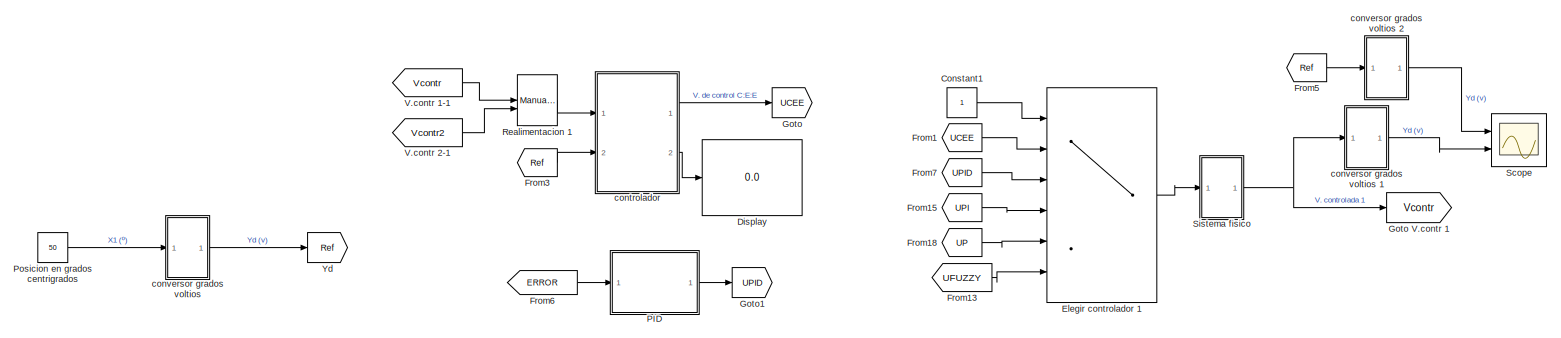
[diagram: root canvas - part 1/3, full width, top band]
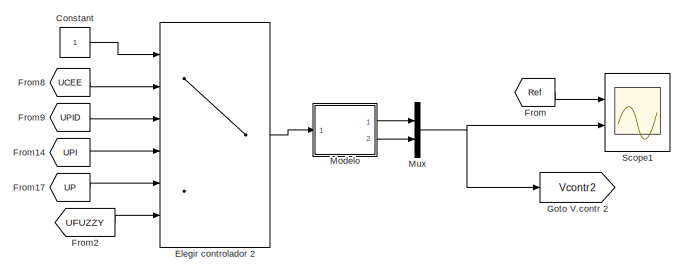
[diagram: root canvas - part 2/3, bottom right region]
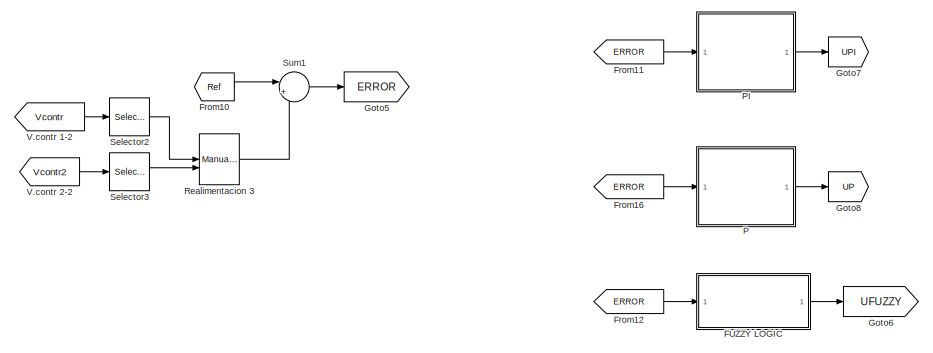
[diagram: root canvas - part 3/3, bottom left region]
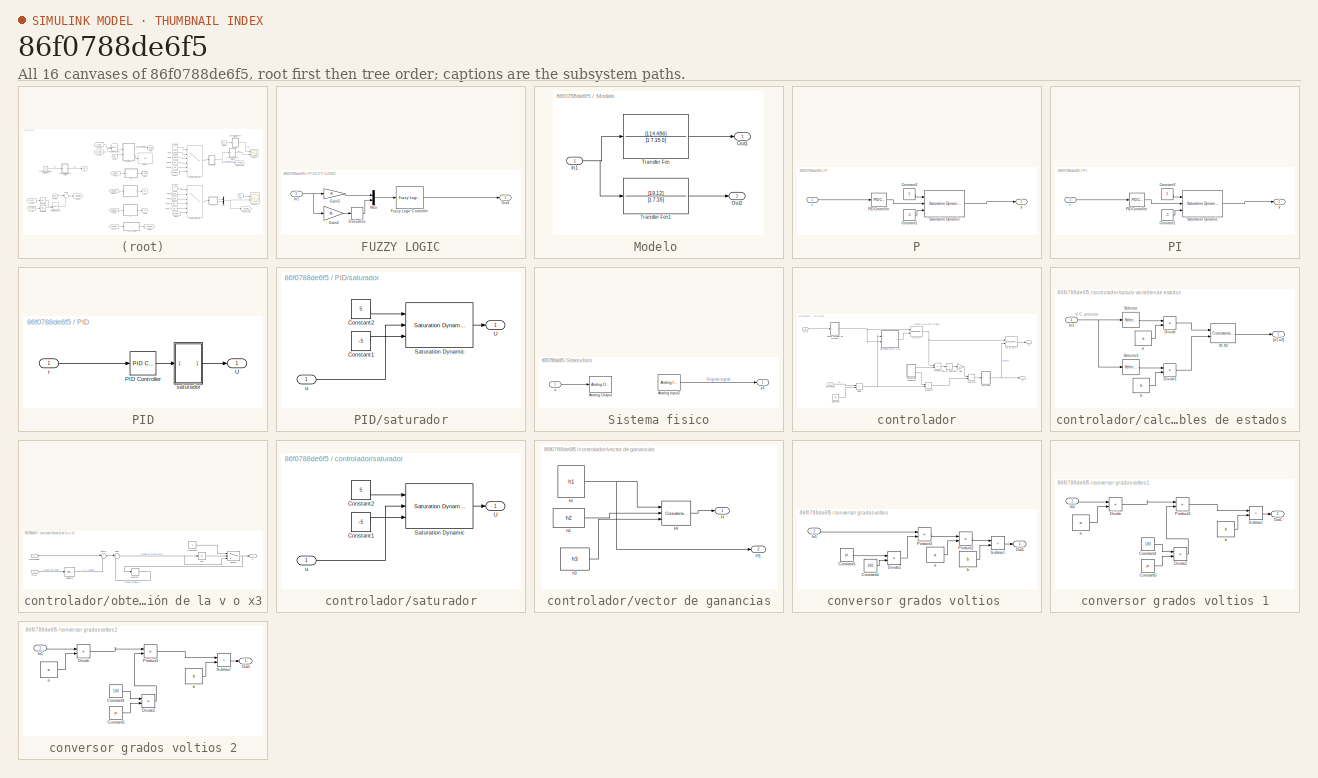
[diagram: thumbnail index - all 16 canvases of the model, root first then tree order]
MODEL slx_86f0788de6f5
KIND model
CONFIG AbsTol = auto
CONFIG EnableMultiTasking = off
CONFIG FixedStep = auto
CONFIG MaxStep = auto
CONFIG MinStep = auto
CONFIG RelTol = 1e-3
CONFIG SampleTimeConstraint = Unconstrained
CONFIG SolverName = ode5
CONFIG StartTime = 0.0
CONFIG StopTime = inf
BLOCK [Constant] Constant
BLOCK [Constant] Constant1
BLOCK [Display] Display
  Decimation = 1
  Ports = [1]
BLOCK [MultiPortSwitch] Elegir controlador 1
  InputSameDT = off
  Inputs = 5
  Ports = [6, 1]
  SaturateOnIntegerOverflow = off
BLOCK [MultiPortSwitch] Elegir controlador 2
  InputSameDT = off
  Inputs = 5
  Ports = [6, 1]
  SaturateOnIntegerOverflow = off
BLOCK [SubSystem] FUZZY LOGIC
  Ports = [1, 1]
  RequestExecContextInheritance = off
BLOCK [Derivative] FUZZY LOGIC/Derivative
BLOCK [Reference] FUZZY LOGIC/Fuzzy Logic Controller  REF=fuzblock/Fuzzy Logic   (lib defined in mdl_858b3b3e7478)
Controller
  Ports = [1, 1]
  SourceBlock = fuzblock/Fuzzy Logic \nController
  SourceProductBaseCode = FL
  SourceType = Fuzzy Inference System
BLOCK [Gain] FUZZY LOGIC/Gain2
BLOCK [Gain] FUZZY LOGIC/Gain3
BLOCK [Inport] FUZZY LOGIC/In1
BLOCK [Mux] FUZZY LOGIC/Mux
  DisplayOption = bar
  Inputs = 2
  Ports = [2, 1]
BLOCK [Outport] FUZZY LOGIC/Out1
BLOCK [From] From
  GotoTag = Ref
BLOCK [From] From1
  GotoTag = UCEE
BLOCK [From] From10
  GotoTag = Ref
BLOCK [From] From11
  GotoTag = ERROR
BLOCK [From] From12
  GotoTag = ERROR
BLOCK [From] From13
  GotoTag = UFUZZY
BLOCK [From] From14
  GotoTag = UPI
BLOCK [From] From15
  GotoTag = UPI
BLOCK [From] From16
  GotoTag = ERROR
BLOCK [From] From17
  GotoTag = UP
BLOCK [From] From18
  GotoTag = UP
BLOCK [From] From2
  GotoTag = UFUZZY
BLOCK [From] From3
  GotoTag = Ref
BLOCK [From] From5
  GotoTag = Ref
BLOCK [From] From6
  GotoTag = ERROR
BLOCK [From] From7
  GotoTag = UPID
BLOCK [From] From8
  GotoTag = UCEE
BLOCK [From] From9
  GotoTag = UPID
BLOCK [Goto] Goto
  GotoTag = UCEE
BLOCK [Goto] Goto V.contr 1
  GotoTag = Vcontr
BLOCK [Goto] Goto V.contr 2
  GotoTag = Vcontr2
BLOCK [Goto] Goto1
  GotoTag = UPID
BLOCK [Goto] Goto5
  GotoTag = ERROR
BLOCK [Goto] Goto6
  GotoTag = UFUZZY
BLOCK [Goto] Goto7
  GotoTag = UPI
BLOCK [Goto] Goto8
  GotoTag = UP
BLOCK [SubSystem] Modelo 
  Ports = [1, 2]
  RequestExecContextInheritance = off
BLOCK [Inport] Modelo /In1
BLOCK [Outport] Modelo /Out1
BLOCK [Outport] Modelo /Out2
  Port = 2
BLOCK [TransferFcn] Modelo /Transfer Fcn
  Denominator = [1 7.35 0]
  Numerator = [114.486]
BLOCK [TransferFcn] Modelo /Transfer Fcn1
  Denominator = [1 7.35]
  Numerator = [19.12]
BLOCK [Mux] Mux
  DisplayOption = bar
  Inputs = 2
  Ports = [2, 1]
BLOCK [SubSystem] P
  Ports = [1, 1]
  RequestExecContextInheritance = off
BLOCK [Constant] P/Constant1
  Value = -5
BLOCK [Constant] P/Constant2
  Value = 5
BLOCK [Reference] P/PID Controller  REF=pid_lib/PID Controller
  Ports = [1, 1]
  SourceBlock = pid_lib/PID Controller
  SourceProductBaseCode = SL
  SourceType = PID 1dof
BLOCK [Reference] P/Saturation Dynamic  REF=simulink/Discontinuities/Saturation
Dynamic
  Ports = [3, 1]
  SourceBlock = simulink/Discontinuities/Saturation\nDynamic
  SourceProductBaseCode = SL
  SourceType = Saturation Dynamic
BLOCK [Inport] P/r
BLOCK [Outport] P/y
BLOCK [SubSystem] PI
  Ports = [1, 1]
  RequestExecContextInheritance = off
BLOCK [Constant] PI/Constant1
  Value = -5
BLOCK [Constant] PI/Constant2
  Value = 5
BLOCK [Reference] PI/PID Controller  REF=pid_lib/PID Controller
  Ports = [1, 1]
  SourceBlock = pid_lib/PID Controller
  SourceProductBaseCode = SL
  SourceType = PID 1dof
BLOCK [Reference] PI/Saturation Dynamic  REF=simulink/Discontinuities/Saturation
Dynamic
  Ports = [3, 1]
  SourceBlock = simulink/Discontinuities/Saturation\nDynamic
  SourceProductBaseCode = SL
  SourceType = Saturation Dynamic
BLOCK [Inport] PI/r
BLOCK [Outport] PI/y
BLOCK [SubSystem] PID
  Ports = [1, 1]
  RequestExecContextInheritance = off
BLOCK [Reference] PID/PID Controller  REF=pid_lib/PID Controller
  Ports = [1, 1]
  SourceBlock = pid_lib/PID Controller
  SourceProductBaseCode = SL
  SourceType = PID 1dof
BLOCK [Outport] PID/U
BLOCK [Inport] PID/r
BLOCK [SubSystem] PID/saturador
  Ports = [1, 1]
  RequestExecContextInheritance = off
BLOCK [Constant] PID/saturador/Constant1
  Value = -5
BLOCK [Constant] PID/saturador/Constant2
  Value = 5
BLOCK [Reference] PID/saturador/Saturation Dynamic  REF=simulink/Discontinuities/Saturation
Dynamic
  Ports = [3, 1]
  SourceBlock = simulink/Discontinuities/Saturation\nDynamic
  SourceProductBaseCode = SL
  SourceType = Saturation Dynamic
BLOCK [Outport] PID/saturador/U
  OutDataTypeStr = double
BLOCK [Inport] PID/saturador/u
  OutDataTypeStr = double
BLOCK [Constant] Posicion en grados centrigrados
  Value = 50
BLOCK [ManualSwitch] Realimentacion 1
BLOCK [ManualSwitch] Realimentacion 3
BLOCK [Scope] Scope
  Floating = off
  NumInputPorts = 2
  Ports = [2]
  ScopeSpecificationString = Simulink.scopes.TimeScopeBlockCfg('CurrentConfiguration', extmgr.ConfigurationSet(extmgr.Configuration('Core','General UI',true),extmgr.Configuration('Core','Source UI',true),extmgr.Configuration('Sources','WiredSimulink',true),extmgr.Configuration('Visuals','Time Domain',true,'SerializedDisplays',{struct('MinYLimReal','-120','MaxYLimReal','120','YLabelReal','','MinYLimMag','0.13306','MaxYLimMag',...<+1543ch>
BLOCK [Scope] Scope1
  Floating = off
  NumInputPorts = 2
  Ports = [2]
  ScopeSpecificationString = Simulink.scopes.TimeScopeBlockCfg('CurrentConfiguration', extmgr.ConfigurationSet(extmgr.Configuration('Core','General UI',true),extmgr.Configuration('Core','Source UI',true),extmgr.Configuration('Sources','WiredSimulink',true,'DataLoggingVariableName','ScopeData1'),extmgr.Configuration('Visuals','Time Domain',true,'SerializedDisplays',{struct('MinYLimReal','-12.5378','MaxYLimReal','61.42277','YLa...<+1424ch>
BLOCK [Selector] Selector2
  IndexOptions = Index vector (dialog)
  Indices = [1]
  InputPortWidth = 2
  OutputSizes = 1
  Ports = [1, 1]
BLOCK [Selector] Selector3
  IndexOptions = Index vector (dialog)
  Indices = [1]
  InputPortWidth = 2
  OutputSizes = 1
  Ports = [1, 1]
BLOCK [SubSystem] Sistema fisico
  Ports = [1, 1]
  RequestExecContextInheritance = off
BLOCK [Reference] Sistema fisico/Analog Input2  REF=sldrtlib/Analog Input
  AttributesFormatString = National Instruments\nPCI-6014 [auto]
  Ports = [0, 1]
  SourceBlock = sldrtlib/Analog Input
  SourceProductBaseCode = WT
  SourceType = Simulink Desktop Real-Time Analog Input
BLOCK [Reference] Sistema fisico/Analog Output  REF=sldrtlib/Analog Output
  AttributesFormatString = National Instruments\nPCI-6014 [auto]
  Ports = [1]
  SourceBlock = sldrtlib/Analog Output
  SourceProductBaseCode = WT
  SourceType = Simulink Desktop Real-Time Analog Output
BLOCK [Inport] Sistema fisico/u
BLOCK [Outport] Sistema fisico/y1
BLOCK [Sum] Sum1
  Inputs = |+-
  Ports = [2, 1]
BLOCK [From] V.contr 1-1
  GotoTag = Vcontr
BLOCK [From] V.contr 1-2
  GotoTag = Vcontr
BLOCK [From] V.contr 2-1
  GotoTag = Vcontr2
BLOCK [From] V.contr 2-2
  GotoTag = Vcontr2
BLOCK [Goto] Yd
  GotoTag = Ref
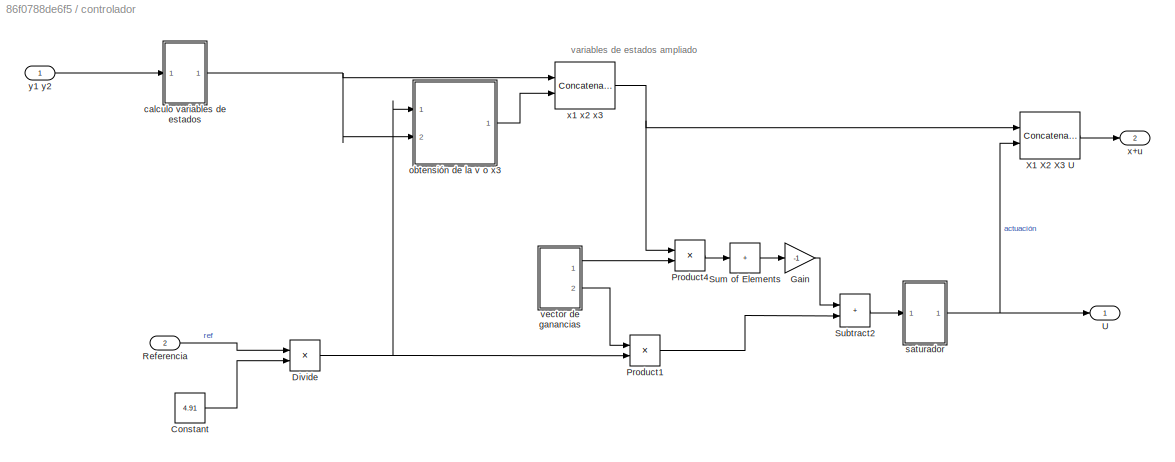
BLOCK [SubSystem] controlador
  Ports = [2, 2]
  RequestExecContextInheritance = off
BLOCK [Constant] controlador/Constant
  Value = 4.91
BLOCK [Product] controlador/Divide
  Inputs = */
  Ports = [2, 1]
BLOCK [Gain] controlador/Gain
  Gain = -1
BLOCK [Product] controlador/Product1
  Ports = [2, 1]
BLOCK [Product] controlador/Product4
  Ports = [2, 1]
BLOCK [Inport] controlador/Referencia
  Port = 2
BLOCK [Sum] controlador/Subtract2
  IconShape = rectangular
  OutDataTypeStr = double
  Ports = [2, 1]
BLOCK [Sum] controlador/Sum of Elements
  IconShape = rectangular
  Inputs = +
  Ports = [1, 1]
BLOCK [Outport] controlador/U
  OutDataTypeStr = double
BLOCK [Concatenate] controlador/X1 X2 X3 U
  ConcatenateDimension = 2
  Ports = [2, 1]
BLOCK [SubSystem] controlador/calculo variables de estados 
  Ports = [1, 1]
  RequestExecContextInheritance = off
BLOCK [Product] controlador/calculo variables de estados /Divide
  Inputs = */
  Ports = [2, 1]
BLOCK [Product] controlador/calculo variables de estados /Divide1
  Inputs = */
  Ports = [2, 1]
BLOCK [Inport] controlador/calculo variables de estados /In1
BLOCK [Selector] controlador/calculo variables de estados /Selector
  IndexOptions = Index vector (dialog)
  Indices = [1]
  InputPortWidth = 2
  OutputSizes = 1
  Ports = [1, 1]
BLOCK [Selector] controlador/calculo variables de estados /Selector1
  IndexOptions = Index vector (dialog)
  Indices = [2]
  InputPortWidth = 2
  OutputSizes = 1
  Ports = [1, 1]
BLOCK [Concatenate] controlador/calculo variables de estados /X1 X2 
  ConcatenateDimension = 2
  Ports = [2, 1]
BLOCK [Outport] controlador/calculo variables de estados /[x1 x2]
BLOCK [Constant] controlador/calculo variables de estados /a
  Value = a
BLOCK [Constant] controlador/calculo variables de estados /b
  Value = b
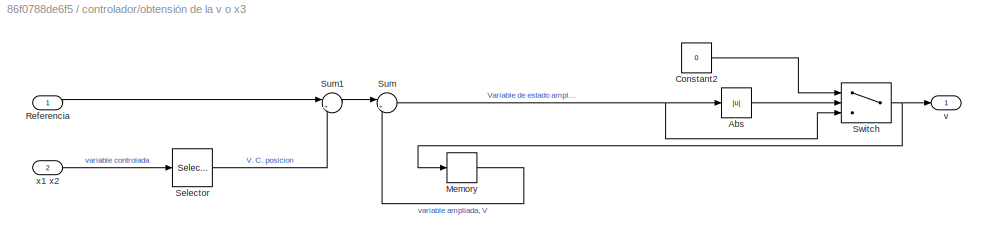
BLOCK [SubSystem] controlador/obtensión de la v o x3
  Ports = [2, 1]
  RequestExecContextInheritance = off
BLOCK [Abs] controlador/obtensión de la v o x3/Abs
  SaturateOnIntegerOverflow = off
BLOCK [Constant] controlador/obtensión de la v o x3/Constant2
  Value = 0
BLOCK [Memory] controlador/obtensión de la v o x3/Memory
  InheritSampleTime = on
  LinearizeAsDelay = on
BLOCK [Inport] controlador/obtensión de la v o x3/Referencia
BLOCK [Selector] controlador/obtensión de la v o x3/Selector
  IndexOptions = Index vector (dialog)
  Indices = [1]
  InputPortWidth = 2
  OutputSizes = 1
  Ports = [1, 1]
BLOCK [Sum] controlador/obtensión de la v o x3/Sum
  Inputs = |++
  Ports = [2, 1]
BLOCK [Sum] controlador/obtensión de la v o x3/Sum1
  Inputs = |+-
  Ports = [2, 1]
BLOCK [Switch] controlador/obtensión de la v o x3/Switch
  InputSameDT = off
  SaturateOnIntegerOverflow = off
  Threshold = 2040
BLOCK [Outport] controlador/obtensión de la v o x3/v
BLOCK [Inport] controlador/obtensión de la v o x3/x1 x2
  Port = 2
  PortDimensions = 2
BLOCK [SubSystem] controlador/saturador
  Ports = [1, 1]
  RequestExecContextInheritance = off
BLOCK [Constant] controlador/saturador/Constant1
  Value = -5
BLOCK [Constant] controlador/saturador/Constant2
  Value = 5
BLOCK [Reference] controlador/saturador/Saturation Dynamic  REF=simulink/Discontinuities/Saturation
Dynamic
  Ports = [3, 1]
  SourceBlock = simulink/Discontinuities/Saturation\nDynamic
  SourceProductBaseCode = SL
  SourceType = Saturation Dynamic
BLOCK [Outport] controlador/saturador/U
  OutDataTypeStr = double
BLOCK [Inport] controlador/saturador/u
  OutDataTypeStr = double
BLOCK [SubSystem] controlador/vector de ganancias
  Ports = [0, 2]
  RequestExecContextInheritance = off
BLOCK [Outport] controlador/vector de ganancias/H
BLOCK [Outport] controlador/vector de ganancias/H1
  Port = 2
BLOCK [Concatenate] controlador/vector de ganancias/Ht
  ConcatenateDimension = 2
  NumInputs = 3
  Ports = [3, 1]
BLOCK [Constant] controlador/vector de ganancias/h1
  Value = h1
BLOCK [Constant] controlador/vector de ganancias/h2
  Value = h2
BLOCK [Constant] controlador/vector de ganancias/h3
  Value = h3
BLOCK [Outport] controlador/x+u
  Port = 2
BLOCK [Concatenate] controlador/x1 x2 x3
  ConcatenateDimension = 2
  Ports = [2, 1]
BLOCK [Inport] controlador/y1 y2
  OutDataTypeStr = double
BLOCK [SubSystem] conversor grados voltios 
  Ports = [1, 1]
  RequestExecContextInheritance = off
BLOCK [Constant] conversor grados voltios /Constant4
  Value = 180
BLOCK [Constant] conversor grados voltios /Constant5
  Value = pi
BLOCK [Product] conversor grados voltios /Divide5
  Inputs = */
  Ports = [2, 1]
BLOCK [Inport] conversor grados voltios /In1
BLOCK [Outport] conversor grados voltios /Out1
BLOCK [Product] conversor grados voltios /Product2
  Ports = [2, 1]
BLOCK [Product] conversor grados voltios /Product3
  Ports = [2, 1]
BLOCK [Sum] conversor grados voltios /Subtract
  IconShape = rectangular
  Ports = [2, 1]
BLOCK [Constant] conversor grados voltios /a
  Value = a
BLOCK [Constant] conversor grados voltios /b
  Value = b
BLOCK [SubSystem] conversor grados voltios 1
  Ports = [1, 1]
  RequestExecContextInheritance = off
BLOCK [Constant] conversor grados voltios 1/Constant4
  Value = 180
BLOCK [Constant] conversor grados voltios 1/Constant5
  Value = pi
BLOCK [Product] conversor grados voltios 1/Divide
  Inputs = */
  Ports = [2, 1]
BLOCK [Product] conversor grados voltios 1/Divide5
  Inputs = */
  Ports = [2, 1]
BLOCK [Inport] conversor grados voltios 1/In1
BLOCK [Outport] conversor grados voltios 1/Out1
BLOCK [Product] conversor grados voltios 1/Product3
  Ports = [2, 1]
BLOCK [Sum] conversor grados voltios 1/Subtract
  IconShape = rectangular
  Ports = [2, 1]
BLOCK [Constant] conversor grados voltios 1/a
  Value = a
BLOCK [Constant] conversor grados voltios 1/b
  Value = b
BLOCK [SubSystem] conversor grados voltios 2
  Ports = [1, 1]
  RequestExecContextInheritance = off
BLOCK [Constant] conversor grados voltios 2/Constant4
  Value = 180
BLOCK [Constant] conversor grados voltios 2/Constant5
  Value = pi
BLOCK [Product] conversor grados voltios 2/Divide
  Inputs = */
  Ports = [2, 1]
BLOCK [Product] conversor grados voltios 2/Divide5
  Inputs = */
  Ports = [2, 1]
BLOCK [Inport] conversor grados voltios 2/In1
BLOCK [Outport] conversor grados voltios 2/Out1
BLOCK [Product] conversor grados voltios 2/Product3
  Ports = [2, 1]
BLOCK [Sum] conversor grados voltios 2/Subtract
  IconShape = rectangular
  Ports = [2, 1]
BLOCK [Constant] conversor grados voltios 2/a
  Value = a
BLOCK [Constant] conversor grados voltios 2/b
  Value = b
ANNOTATION controlador: variables de estados ampliado
ANNOTATION controlador/calculo variables de estados : V. C. posicion
LINE Constant1:1 -> Elegir controlador 1:1
LINE Constant:1 -> Elegir controlador 2:1
LINE Elegir controlador 1:1 -> Sistema fisico:1
LINE Elegir controlador 2:1 -> Modelo :1
LINE FUZZY LOGIC/Derivative:1 -> FUZZY LOGIC/Mux:2
LINE FUZZY LOGIC/Fuzzy Logic Controller:1 -> FUZZY LOGIC/Out1:1
LINE FUZZY LOGIC/Gain2:1 -> FUZZY LOGIC/Derivative:1
LINE FUZZY LOGIC/Gain3:1 -> FUZZY LOGIC/Mux:1
NET FUZZY LOGIC/In1:1 -> FUZZY LOGIC/Gain2:1, FUZZY LOGIC/Gain3:1
LINE FUZZY LOGIC/Mux:1 -> FUZZY LOGIC/Fuzzy Logic Controller:1
LINE FUZZY LOGIC:1 -> Goto6:1
LINE From10:1 -> Sum1:1
LINE From11:1 -> PI:1
LINE From12:1 -> FUZZY LOGIC:1
LINE From13:1 -> Elegir controlador 1:6
LINE From14:1 -> Elegir controlador 2:4
LINE From15:1 -> Elegir controlador 1:4
LINE From16:1 -> P:1
LINE From17:1 -> Elegir controlador 2:5
LINE From18:1 -> Elegir controlador 1:5
LINE From1:1 -> Elegir controlador 1:2
LINE From2:1 -> Elegir controlador 2:6
LINE From3:1 -> controlador:2
LINE From5:1 -> conversor grados voltios 2:1
LINE From6:1 -> PID:1
LINE From7:1 -> Elegir controlador 1:3
LINE From8:1 -> Elegir controlador 2:2
LINE From9:1 -> Elegir controlador 2:3
LINE From:1 -> Scope1:1
NET Modelo /In1:1 -> Modelo /Transfer Fcn1:1, Modelo /Transfer Fcn:1
LINE Modelo /Transfer Fcn1:1 -> Modelo /Out2:1
LINE Modelo /Transfer Fcn:1 -> Modelo /Out1:1
LINE Modelo :1 -> Mux:1
LINE Modelo :2 -> Mux:2
NET Mux:1 -> Goto V.contr 2:1, Scope1:2
LINE P/Constant1:1 -> P/Saturation Dynamic:3
LINE P/Constant2:1 -> P/Saturation Dynamic:1
LINE P/PID Controller:1 -> P/Saturation Dynamic:2
LINE P/Saturation Dynamic:1 -> P/y:1
LINE P/r:1 -> P/PID Controller:1
LINE P:1 -> Goto8:1
LINE PI/Constant1:1 -> PI/Saturation Dynamic:3
LINE PI/Constant2:1 -> PI/Saturation Dynamic:1
LINE PI/PID Controller:1 -> PI/Saturation Dynamic:2
LINE PI/Saturation Dynamic:1 -> PI/y:1
LINE PI/r:1 -> PI/PID Controller:1
LINE PI:1 -> Goto7:1
LINE PID/PID Controller:1 -> PID/saturador:1
LINE PID/r:1 -> PID/PID Controller:1
LINE PID/saturador/Constant1:1 -> PID/saturador/Saturation Dynamic:3
LINE PID/saturador/Constant2:1 -> PID/saturador/Saturation Dynamic:1
LINE PID/saturador/Saturation Dynamic:1 -> PID/saturador/U:1
LINE PID/saturador/u:1 -> PID/saturador/Saturation Dynamic:2
LINE PID/saturador:1 -> PID/U:1
LINE PID:1 -> Goto1:1
LINE Posicion en grados centrigrados:1 -> conversor grados voltios :1
LINE Realimentacion 1:1 -> controlador:1
LINE Realimentacion 3:1 -> Sum1:2
LINE Selector2:1 -> Realimentacion 3:1
LINE Selector3:1 -> Realimentacion 3:2
LINE Sistema fisico/Analog Input2:1 -> Sistema fisico/y1:1
LINE Sistema fisico/u:1 -> Sistema fisico/Analog Output:1
NET Sistema fisico:1 -> Goto V.contr 1:1, conversor grados voltios 1:1
LINE Sum1:1 -> Goto5:1
LINE V.contr 1-1:1 -> Realimentacion 1:1
LINE V.contr 1-2:1 -> Selector2:1
LINE V.contr 2-1:1 -> Realimentacion 1:2
LINE V.contr 2-2:1 -> Selector3:1
LINE controlador/Constant:1 -> controlador/Divide:2
NET controlador/Divide:1 -> controlador/Product1:2, controlador/obtensión de la v o x3:1
LINE controlador/Gain:1 -> controlador/Subtract2:1
LINE controlador/Product1:1 -> controlador/Subtract2:2
LINE controlador/Product4:1 -> controlador/Sum of Elements:1
LINE controlador/Referencia:1 -> controlador/Divide:1
LINE controlador/Subtract2:1 -> controlador/saturador:1
LINE controlador/Sum of Elements:1 -> controlador/Gain:1
LINE controlador/X1 X2 X3 U:1 -> controlador/x+u:1
LINE controlador/calculo variables de estados /Divide1:1 -> controlador/calculo variables de estados /X1 X2 :2
LINE controlador/calculo variables de estados /Divide:1 -> controlador/calculo variables de estados /X1 X2 :1
NET controlador/calculo variables de estados /In1:1 -> controlador/calculo variables de estados /Selector1:1, controlador/calculo variables de estados /Selector:1
LINE controlador/calculo variables de estados /Selector1:1 -> controlador/calculo variables de estados /Divide1:1
LINE controlador/calculo variables de estados /Selector:1 -> controlador/calculo variables de estados /Divide:1
LINE controlador/calculo variables de estados /X1 X2 :1 -> controlador/calculo variables de estados /[x1 x2]:1
LINE controlador/calculo variables de estados /a:1 -> controlador/calculo variables de estados /Divide:2
LINE controlador/calculo variables de estados /b:1 -> controlador/calculo variables de estados /Divide1:2
NET controlador/calculo variables de estados :1 -> controlador/obtensión de la v o x3:2, controlador/x1 x2 x3:1
LINE controlador/obtensión de la v o x3/Abs:1 -> controlador/obtensión de la v o x3/Switch:2
LINE controlador/obtensión de la v o x3/Constant2:1 -> controlador/obtensión de la v o x3/Switch:1
LINE controlador/obtensión de la v o x3/Memory:1 -> controlador/obtensión de la v o x3/Sum:2
LINE controlador/obtensión de la v o x3/Referencia:1 -> controlador/obtensión de la v o x3/Sum1:1
LINE controlador/obtensión de la v o x3/Selector:1 -> controlador/obtensión de la v o x3/Sum1:2
LINE controlador/obtensión de la v o x3/Sum1:1 -> controlador/obtensión de la v o x3/Sum:1
NET controlador/obtensión de la v o x3/Sum:1 -> controlador/obtensión de la v o x3/Abs:1, controlador/obtensión de la v o x3/Switch:3
NET controlador/obtensión de la v o x3/Switch:1 -> controlador/obtensión de la v o x3/Memory:1, controlador/obtensión de la v o x3/v:1
LINE controlador/obtensión de la v o x3/x1 x2:1 -> controlador/obtensión de la v o x3/Selector:1
LINE controlador/obtensión de la v o x3:1 -> controlador/x1 x2 x3:2
LINE controlador/saturador/Constant1:1 -> controlador/saturador/Saturation Dynamic:3
LINE controlador/saturador/Constant2:1 -> controlador/saturador/Saturation Dynamic:1
LINE controlador/saturador/Saturation Dynamic:1 -> controlador/saturador/U:1
LINE controlador/saturador/u:1 -> controlador/saturador/Saturation Dynamic:2
NET controlador/saturador:1 -> controlador/U:1, controlador/X1 X2 X3 U:2
LINE controlador/vector de ganancias/Ht:1 -> controlador/vector de ganancias/H:1
NET controlador/vector de ganancias/h1:1 -> controlador/vector de ganancias/H1:1, controlador/vector de ganancias/Ht:1
LINE controlador/vector de ganancias/h2:1 -> controlador/vector de ganancias/Ht:2
LINE controlador/vector de ganancias/h3:1 -> controlador/vector de ganancias/Ht:3
LINE controlador/vector de ganancias:1 -> controlador/Product4:2
LINE controlador/vector de ganancias:2 -> controlador/Product1:1
NET controlador/x1 x2 x3:1 -> controlador/Product4:1, controlador/X1 X2 X3 U:1
LINE controlador/y1 y2:1 -> controlador/calculo variables de estados :1
LINE controlador:1 -> Goto:1
LINE controlador:2 -> Display:1
LINE conversor grados voltios /Constant4:1 -> conversor grados voltios /Divide5:2
LINE conversor grados voltios /Constant5:1 -> conversor grados voltios /Divide5:1
LINE conversor grados voltios /Divide5:1 -> conversor grados voltios /Product3:2
LINE conversor grados voltios /In1:1 -> conversor grados voltios /Product3:1
LINE conversor grados voltios /Product2:1 -> conversor grados voltios /Subtract:1
LINE conversor grados voltios /Product3:1 -> conversor grados voltios /Product2:1
LINE conversor grados voltios /Subtract:1 -> conversor grados voltios /Out1:1
LINE conversor grados voltios /a:1 -> conversor grados voltios /Product2:2
LINE conversor grados voltios /b:1 -> conversor grados voltios /Subtract:2
LINE conversor grados voltios 1/Constant4:1 -> conversor grados voltios 1/Divide5:1
LINE conversor grados voltios 1/Constant5:1 -> conversor grados voltios 1/Divide5:2
LINE conversor grados voltios 1/Divide5:1 -> conversor grados voltios 1/Product3:2
LINE conversor grados voltios 1/Divide:1 -> conversor grados voltios 1/Product3:1
LINE conversor grados voltios 1/In1:1 -> conversor grados voltios 1/Divide:1
LINE conversor grados voltios 1/Product3:1 -> conversor grados voltios 1/Subtract:1
LINE conversor grados voltios 1/Subtract:1 -> conversor grados voltios 1/Out1:1
LINE conversor grados voltios 1/a:1 -> conversor grados voltios 1/Divide:2
LINE conversor grados voltios 1/b:1 -> conversor grados voltios 1/Subtract:2
LINE conversor grados voltios 1:1 -> Scope:2
LINE conversor grados voltios 2/Constant4:1 -> conversor grados voltios 2/Divide5:1
LINE conversor grados voltios 2/Constant5:1 -> conversor grados voltios 2/Divide5:2
LINE conversor grados voltios 2/Divide5:1 -> conversor grados voltios 2/Product3:2
LINE conversor grados voltios 2/Divide:1 -> conversor grados voltios 2/Product3:1
LINE conversor grados voltios 2/In1:1 -> conversor grados voltios 2/Divide:1
LINE conversor grados voltios 2/Product3:1 -> conversor grados voltios 2/Subtract:1
LINE conversor grados voltios 2/Subtract:1 -> conversor grados voltios 2/Out1:1
LINE conversor grados voltios 2/a:1 -> conversor grados voltios 2/Divide:2
LINE conversor grados voltios 2/b:1 -> conversor grados voltios 2/Subtract:2
LINE conversor grados voltios 2:1 -> Scope:1
LINE conversor grados voltios :1 -> Yd:1
note: NET lines group one-source signal fan-out (src -> all destinations, sorted); 1:1 wires keep LINE
